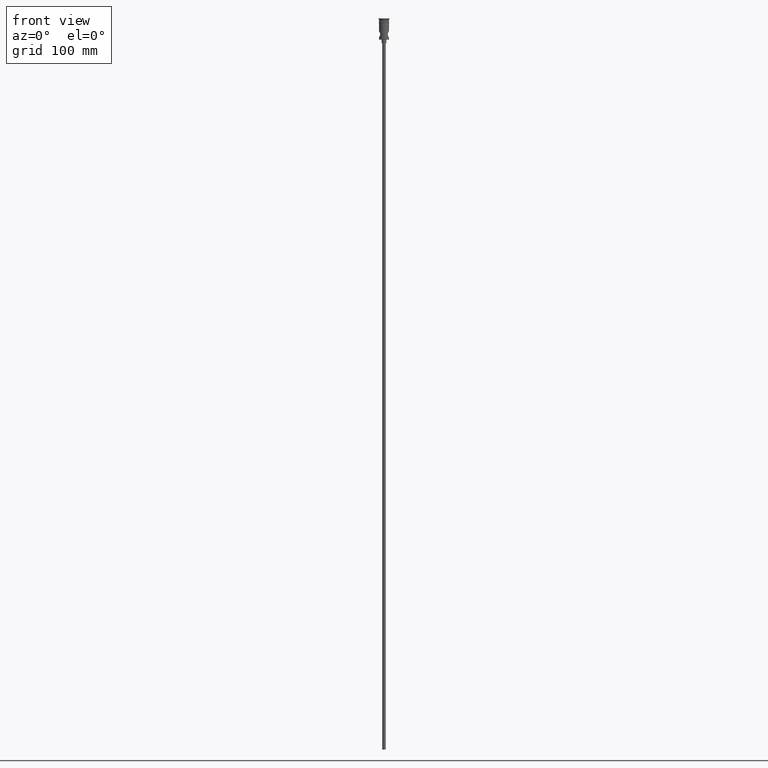
[diagram: clean part render]
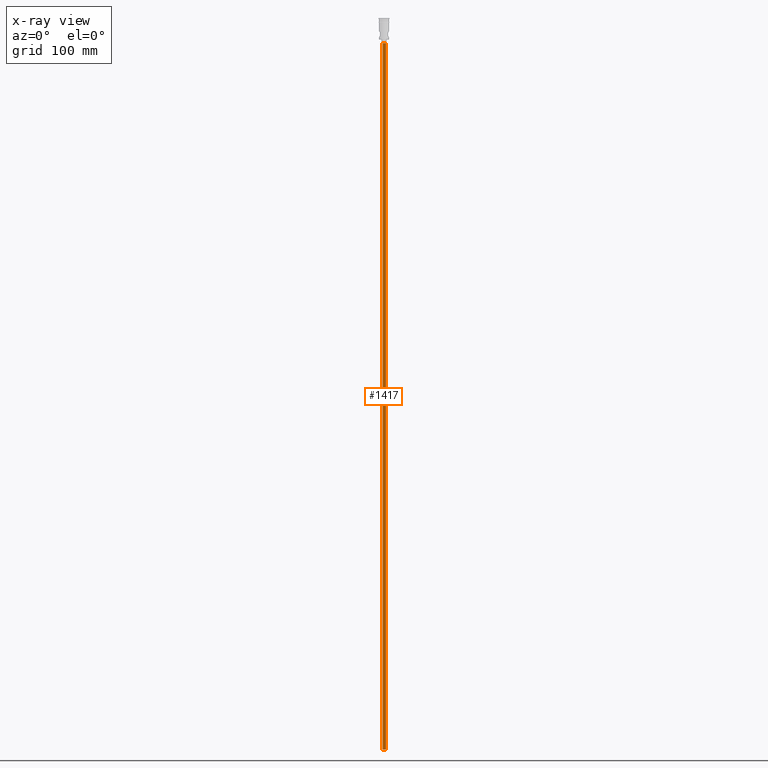
[diagram: x-ray — body ghosted, one internal face saturated and labeled with its STEP entity id]
A machine part, front view, then the same camera in x-ray: the body is ghosted and one INTERNAL B-rep face — a face not visible from any outside direction — is saturated and labeled: STEP entity #1417.
In plain terms, the highlighted cylindrical surface (edge-blend (fillet) strip) has radius 1.5 mm, axis along (-0, -0, 1).
Its self-contained STEP definition (entity closure, byte-faithful):
#8 = CARTESIAN_POINT ( 'NONE',  ( 1.500000000000000222, 0.000000000000000000, -618.0000000000000000 ) ) ;
#18 = EDGE_CURVE ( 'NONE', #99, #1228, #250, .T. ) ;
#99 = VERTEX_POINT ( 'NONE', #1362 ) ;
#157 = VERTEX_POINT ( 'NONE', #1012 ) ;
#162 = DIRECTION ( 'NONE',  ( 0.000000000000000000, 0.000000000000000000, -1.000000000000000000 ) ) ;
#175 = ORIENTED_EDGE ( 'NONE', *, *, #1221, .T. ) ;
#243 = CARTESIAN_POINT ( 'NONE',  ( -1.500000000000000222, 1.836970198721030181E-16, -618.0000000000000000 ) ) ;
#250 = LINE ( 'NONE', #243, #361 ) ;
#331 = LINE ( 'NONE', #8, #1042 ) ;
#361 = VECTOR ( 'NONE', #686, 1000.000000000000000 ) ;
#385 = CARTESIAN_POINT ( 'NONE',  ( 0.000000000000000000, 0.000000000000000000, -20.99999999999999645 ) ) ;
#390 = CIRCLE ( 'NONE', #884, 1.500000000000000222 ) ;
#434 = CYLINDRICAL_SURFACE ( 'NONE', #1250, 1.500000000000000222 ) ;
#448 = EDGE_CURVE ( 'NONE', #99, #157, #1401, .T. ) ;
#452 = VERTEX_POINT ( 'NONE', #1148 ) ;
#474 = CARTESIAN_POINT ( 'NONE',  ( 0.000000000000000000, 0.000000000000000000, -618.0000000000000000 ) ) ;
#570 = CARTESIAN_POINT ( 'NONE',  ( -1.500000000000000222, 1.836970198721030181E-16, -20.99999999999999645 ) ) ;
#654 = EDGE_CURVE ( 'NONE', #157, #452, #331, .T. ) ;
#686 = DIRECTION ( 'NONE',  ( -0.000000000000000000, -0.000000000000000000, 1.000000000000000000 ) ) ;
#690 = AXIS2_PLACEMENT_3D ( 'NONE', #474, #162, #920 ) ;
#805 = CARTESIAN_POINT ( 'NONE',  ( 0.000000000000000000, 0.000000000000000000, -618.0000000000000000 ) ) ;
#884 = AXIS2_PLACEMENT_3D ( 'NONE', #385, #1344, #1241 ) ;
#920 = DIRECTION ( 'NONE',  ( -1.000000000000000000, 0.000000000000000000, 0.000000000000000000 ) ) ;
#1012 = CARTESIAN_POINT ( 'NONE',  ( 1.500000000000000222, 0.000000000000000000, -618.0000000000000000 ) ) ;
#1042 = VECTOR ( 'NONE', #1121, 1000.000000000000000 ) ;
#1070 = ORIENTED_EDGE ( 'NONE', *, *, #18, .T. ) ;
#1094 = ORIENTED_EDGE ( 'NONE', *, *, #654, .F. ) ;
#1099 = DIRECTION ( 'NONE',  ( 1.000000000000000000, 0.000000000000000000, 0.000000000000000000 ) ) ;
#1121 = DIRECTION ( 'NONE',  ( -0.000000000000000000, -0.000000000000000000, 1.000000000000000000 ) ) ;
#1148 = CARTESIAN_POINT ( 'NONE',  ( 1.500000000000000222, 0.000000000000000000, -20.99999999999999645 ) ) ;
#1199 = EDGE_LOOP ( 'NONE', ( #1289, #1070, #175, #1094 ) ) ;
#1221 = EDGE_CURVE ( 'NONE', #1228, #452, #390, .T. ) ;
#1228 = VERTEX_POINT ( 'NONE', #570 ) ;
#1241 = DIRECTION ( 'NONE',  ( -1.000000000000000000, 0.000000000000000000, 0.000000000000000000 ) ) ;
#1245 = FACE_OUTER_BOUND ( 'NONE', #1199, .T. ) ;
#1250 = AXIS2_PLACEMENT_3D ( 'NONE', #805, #1342, #1099 ) ;
#1289 = ORIENTED_EDGE ( 'NONE', *, *, #448, .F. ) ;
#1342 = DIRECTION ( 'NONE',  ( -0.000000000000000000, -0.000000000000000000, 1.000000000000000000 ) ) ;
#1344 = DIRECTION ( 'NONE',  ( 0.000000000000000000, 0.000000000000000000, -1.000000000000000000 ) ) ;
#1362 = CARTESIAN_POINT ( 'NONE',  ( -1.500000000000000222, 1.836970198721030181E-16, -618.0000000000000000 ) ) ;
#1401 = CIRCLE ( 'NONE', #690, 1.500000000000000222 ) ;
#1417 = ADVANCED_FACE ( 'NONE', ( #1245 ), #434, .T. ) ;